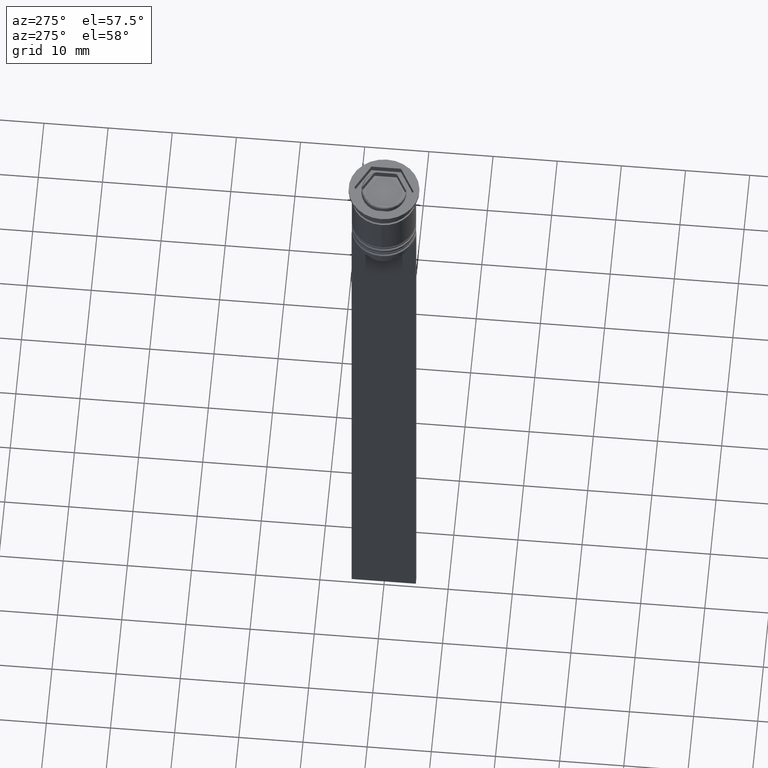
[diagram: clean part render]
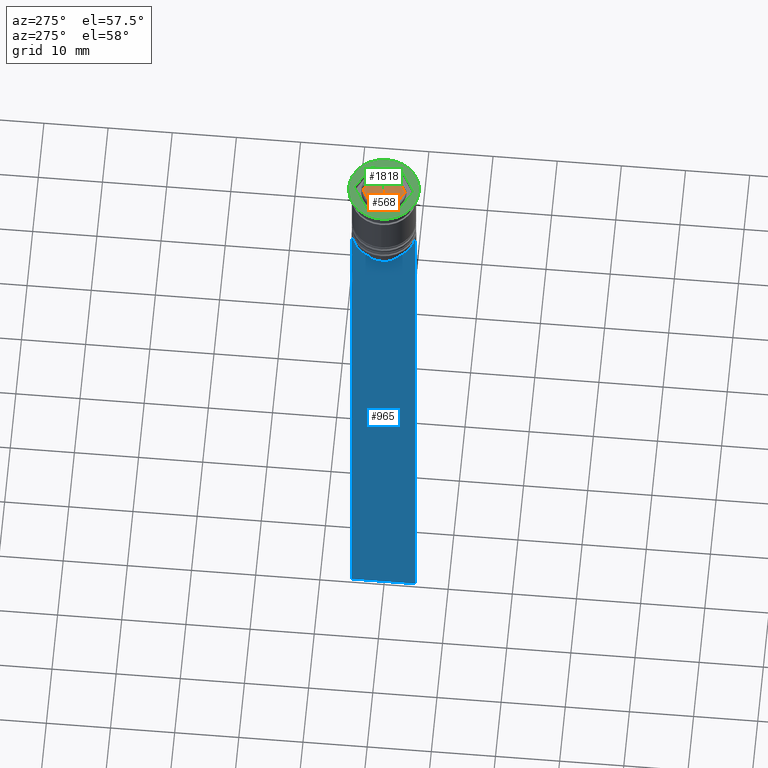
[diagram: same view with three faces highlighted in distinct colors, each labeled with its STEP entity id]
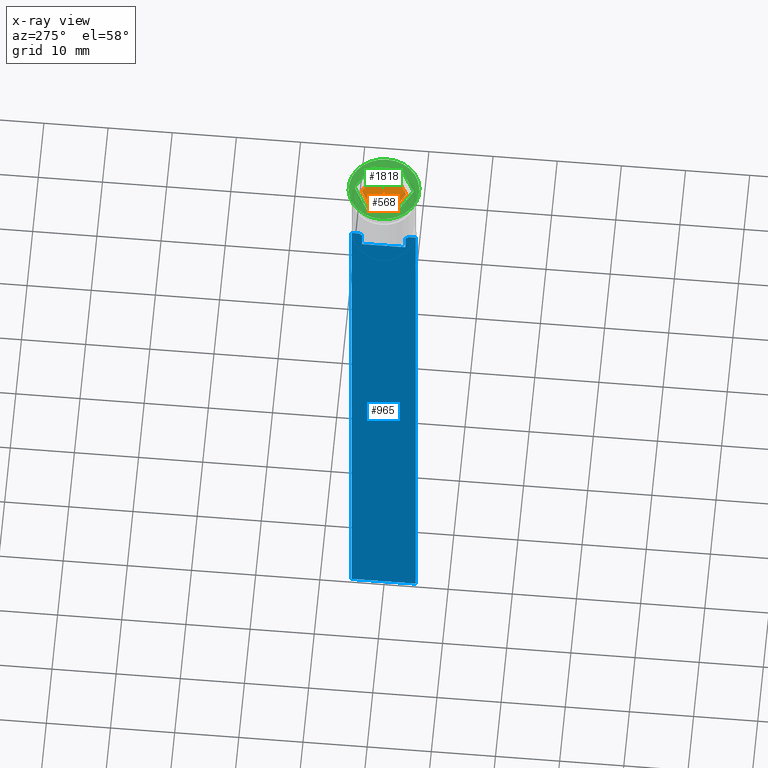
[diagram: x-ray of the same camera — body ghosted, the three highlighted faces saturated]
A machine part, auxiliary view with three faces highlighted in distinct colors.
The next image is the same camera in x-ray (body ghosted, the three faces saturated) — at least one of them is partly hidden behind the body in this view.
Their STEP definitions:

[orange] entity #568 — the highlighted planar face has unit normal (0, 0, 1).
#13 = CARTESIAN_POINT ( 'NONE',  ( 0.000000000000000000, 3.464101615137754386, -1.000000000000000888 ) ) ;
#29 = ORIENTED_EDGE ( 'NONE', *, *, #494, .F. ) ;
#61 = CARTESIAN_POINT ( 'NONE',  ( -3.000000000000000000, -1.732050807568876971, -1.000000000000000888 ) ) ;
#120 = ORIENTED_EDGE ( 'NONE', *, *, #1420, .F. ) ;
#140 = EDGE_LOOP ( 'NONE', ( #1107, #1180, #120, #29, #1145, #2581 ) ) ;
#141 = DIRECTION ( 'NONE',  ( 0.000000000000000000, 0.000000000000000000, 1.000000000000000000 ) ) ;
#155 = VECTOR ( 'NONE', #914, 1000.000000000000114 ) ;
#210 = CARTESIAN_POINT ( 'NONE',  ( 0.000000000000000000, 3.464101615137754386, -1.000000000000000888 ) ) ;
#217 = CARTESIAN_POINT ( 'NONE',  ( 2.999999999999999112, -1.732050807568877193, -1.000000000000000888 ) ) ;
#326 = CARTESIAN_POINT ( 'NONE',  ( -3.000000000000000000, 1.732050807568876971, -1.000000000000000888 ) ) ;
#330 = LINE ( 'NONE', #2507, #899 ) ;
#341 = VERTEX_POINT ( 'NONE', #210 ) ;
#354 = VECTOR ( 'NONE', #1422, 999.9999999999998863 ) ;
#481 = CARTESIAN_POINT ( 'NONE',  ( -2.168404344971008868E-16, -3.464101615137754386, -1.000000000000000888 ) ) ;
#482 = VECTOR ( 'NONE', #780, 999.9999999999998863 ) ;
#484 = VERTEX_POINT ( 'NONE', #678 ) ;
#494 = EDGE_CURVE ( 'NONE', #1505, #855, #1053, .T. ) ;
#568 = ADVANCED_FACE ( 'NONE', ( #1317 ), #900, .T. ) ;
#620 = LINE ( 'NONE', #13, #482 ) ;
#678 = CARTESIAN_POINT ( 'NONE',  ( -3.000000000000000000, 1.732050807568876971, -1.000000000000000888 ) ) ;
#696 = CARTESIAN_POINT ( 'NONE',  ( 3.000000000000000888, 1.732050807568877415, -1.000000000000000888 ) ) ;
#744 = CARTESIAN_POINT ( 'NONE',  ( 0.000000000000000000, 0.000000000000000000, -1.000000000000000000 ) ) ;
#775 = VECTOR ( 'NONE', #2492, 1000.000000000000000 ) ;
#780 = DIRECTION ( 'NONE',  ( 0.8660254037844387076, 0.4999999999999999445, -0.000000000000000000 ) ) ;
#834 = EDGE_CURVE ( 'NONE', #845, #1505, #2434, .T. ) ;
#845 = VERTEX_POINT ( 'NONE', #217 ) ;
#855 = VERTEX_POINT ( 'NONE', #1449 ) ;
#899 = VECTOR ( 'NONE', #2533, 1000.000000000000000 ) ;
#900 = PLANE ( 'NONE',  #2313 ) ;
#914 = DIRECTION ( 'NONE',  ( 0.8660254037844387076, -0.4999999999999997780, 0.000000000000000000 ) ) ;
#970 = CARTESIAN_POINT ( 'NONE',  ( -4.336808689942017736E-16, -3.464101615137753942, -1.000000000000000888 ) ) ;
#1053 = LINE ( 'NONE', #61, #2310 ) ;
#1107 = ORIENTED_EDGE ( 'NONE', *, *, #2501, .F. ) ;
#1145 = ORIENTED_EDGE ( 'NONE', *, *, #834, .F. ) ;
#1180 = ORIENTED_EDGE ( 'NONE', *, *, #1458, .F. ) ;
#1262 = DIRECTION ( 'NONE',  ( -0.8660254037844387076, 0.4999999999999999445, 0.000000000000000000 ) ) ;
#1317 = FACE_OUTER_BOUND ( 'NONE', #140, .T. ) ;
#1337 = DIRECTION ( 'NONE',  ( 1.000000000000000000, 0.000000000000000000, -0.000000000000000000 ) ) ;
#1420 = EDGE_CURVE ( 'NONE', #855, #484, #1536, .T. ) ;
#1422 = DIRECTION ( 'NONE',  ( -0.8660254037844387076, -0.5000000000000001110, 0.000000000000000000 ) ) ;
#1449 = CARTESIAN_POINT ( 'NONE',  ( -3.000000000000000000, -1.732050807568876527, -1.000000000000000888 ) ) ;
#1458 = EDGE_CURVE ( 'NONE', #484, #341, #620, .T. ) ;
#1505 = VERTEX_POINT ( 'NONE', #970 ) ;
#1536 = LINE ( 'NONE', #326, #775 ) ;
#1558 = CARTESIAN_POINT ( 'NONE',  ( 3.000000000000000888, 1.732050807568877193, -1.000000000000000888 ) ) ;
#1918 = EDGE_CURVE ( 'NONE', #2226, #845, #330, .T. ) ;
#2226 = VERTEX_POINT ( 'NONE', #1558 ) ;
#2273 = LINE ( 'NONE', #696, #155 ) ;
#2310 = VECTOR ( 'NONE', #1262, 999.9999999999998863 ) ;
#2313 = AXIS2_PLACEMENT_3D ( 'NONE', #744, #141, #1337 ) ;
#2434 = LINE ( 'NONE', #481, #354 ) ;
#2492 = DIRECTION ( 'NONE',  ( 0.000000000000000000, 1.000000000000000000, 0.000000000000000000 ) ) ;
#2501 = EDGE_CURVE ( 'NONE', #341, #2226, #2273, .T. ) ;
#2507 = CARTESIAN_POINT ( 'NONE',  ( 2.999999999999999112, -1.732050807568877637, -1.000000000000000888 ) ) ;
#2533 = DIRECTION ( 'NONE',  ( -5.007715329123864752E-16, -1.000000000000000000, 0.000000000000000000 ) ) ;
#2581 = ORIENTED_EDGE ( 'NONE', *, *, #1918, .F. ) ;

[blue] entity #965 — the highlighted planar face has unit normal (-1, 0, 0).
#41 = CARTESIAN_POINT ( 'NONE',  ( -0.5000000000000000000, -3.867815921162742754, -12.50000000000000000 ) ) ;
#106 = ORIENTED_EDGE ( 'NONE', *, *, #472, .F. ) ;
#116 = DIRECTION ( 'NONE',  ( 0.000000000000000000, -1.000000000000000000, 0.000000000000000000 ) ) ;
#122 = CARTESIAN_POINT ( 'NONE',  ( -0.5000000000000000000, 5.000000000000000888, -2.450124378879110054 ) ) ;
#203 = DIRECTION ( 'NONE',  ( -1.000000000000000000, 0.000000000000000000, 0.000000000000000000 ) ) ;
#249 = VERTEX_POINT ( 'NONE', #2375 ) ;
#259 = DIRECTION ( 'NONE',  ( 0.000000000000000000, 1.000000000000000000, 0.000000000000000000 ) ) ;
#272 = AXIS2_PLACEMENT_3D ( 'NONE', #1983, #203, #1005 ) ;
#320 = ORIENTED_EDGE ( 'NONE', *, *, #1471, .F. ) ;
#328 = DIRECTION ( 'NONE',  ( 0.000000000000000000, -1.000000000000000000, 0.000000000000000000 ) ) ;
#338 = ORIENTED_EDGE ( 'NONE', *, *, #1892, .F. ) ;
#390 = EDGE_CURVE ( 'NONE', #2467, #2447, #440, .T. ) ;
#408 = DIRECTION ( 'NONE',  ( 0.000000000000000000, -1.000000000000000000, 0.000000000000000000 ) ) ;
#434 = VERTEX_POINT ( 'NONE', #1874 ) ;
#440 = LINE ( 'NONE', #1249, #685 ) ;
#472 = EDGE_CURVE ( 'NONE', #1788, #1924, #2041, .T. ) ;
#492 = CARTESIAN_POINT ( 'NONE',  ( -0.5000000000000000000, -3.867815921162742754, -12.50000000000000000 ) ) ;
#521 = CARTESIAN_POINT ( 'NONE',  ( -0.5000000000000000000, -4.874423042781575788, -12.50000000000000000 ) ) ;
#526 = VECTOR ( 'NONE', #408, 1000.000000000000000 ) ;
#586 = B_SPLINE_CURVE_WITH_KNOTS ( 'NONE', 3,
 ( #1370, #2548, #765, #1563 ),
 .UNSPECIFIED., .F., .F.,
 ( 4, 4 ),
 ( 0.006644825462451552783, 0.007355321358912435097 ),
 .UNSPECIFIED. ) ;
#598 = EDGE_CURVE ( 'NONE', #1322, #1516, #1328, .T. ) ;
#639 = VECTOR ( 'NONE', #328, 1000.000000000000000 ) ;
#685 = VECTOR ( 'NONE', #2255, 1000.000000000000000 ) ;
#720 = CARTESIAN_POINT ( 'NONE',  ( -0.5000000000000000000, 5.000000000000000888, -112.5000000000000000 ) ) ;
#745 = VERTEX_POINT ( 'NONE', #2370 ) ;
#752 = B_SPLINE_CURVE_WITH_KNOTS ( 'NONE', 3,
 ( #1049, #1245, #1824, #41 ),
 .UNSPECIFIED., .F., .F.,
 ( 4, 4 ),
 ( 0.01632394437298965648, 0.01703543518243618576 ),
 .UNSPECIFIED. ) ;
#765 = CARTESIAN_POINT ( 'NONE',  ( -0.5000000000000000000, 3.531412678228260216, -12.83345231756357840 ) ) ;
#776 = VECTOR ( 'NONE', #1090, 1000.000000000000000 ) ;
#815 = CARTESIAN_POINT ( 'NONE',  ( -0.5000000000000000000, -4.999999999999999112, -12.50000000000000000 ) ) ;
#838 = LINE ( 'NONE', #1814, #1894 ) ;
#888 = EDGE_CURVE ( 'NONE', #434, #2048, #752, .T. ) ;
#905 = EDGE_CURVE ( 'NONE', #2048, #1322, #838, .T. ) ;
#916 = ORIENTED_EDGE ( 'NONE', *, *, #1743, .F. ) ;
#965 = ADVANCED_FACE ( 'NONE', ( #2426 ), #1600, .T. ) ;
#1005 = DIRECTION ( 'NONE',  ( 0.000000000000000000, 0.000000000000000000, 1.000000000000000000 ) ) ;
#1040 = CARTESIAN_POINT ( 'NONE',  ( -0.5000000000000000000, -4.999999999999999112, -112.5000000000000000 ) ) ;
#1049 = CARTESIAN_POINT ( 'NONE',  ( -0.5000000000000000000, -3.363034344160045208, -13.00000000000000178 ) ) ;
#1063 = VERTEX_POINT ( 'NONE', #1375 ) ;
#1090 = DIRECTION ( 'NONE',  ( 0.000000000000000000, 0.000000000000000000, -1.000000000000000000 ) ) ;
#1103 = CARTESIAN_POINT ( 'NONE',  ( -0.5000000000000000000, 3.399999999999998135, -15.50000000000000000 ) ) ;
#1110 = CARTESIAN_POINT ( 'NONE',  ( -0.5000000000000000000, 3.363034344160045652, -15.50000000000000000 ) ) ;
#1118 = CARTESIAN_POINT ( 'NONE',  ( -0.5000000000000000000, -4.999999999999999112, -2.450124378879110054 ) ) ;
#1163 = DIRECTION ( 'NONE',  ( -0.000000000000000000, -0.000000000000000000, 1.000000000000000000 ) ) ;
#1245 = CARTESIAN_POINT ( 'NONE',  ( -0.5000000000000000000, -3.531412985305424801, -12.83345201382502765 ) ) ;
#1249 = CARTESIAN_POINT ( 'NONE',  ( -0.5000000000000000000, 3.363034344160045208, 0.000000000000000000 ) ) ;
#1322 = VERTEX_POINT ( 'NONE', #521 ) ;
#1328 = LINE ( 'NONE', #2297, #639 ) ;
#1370 = CARTESIAN_POINT ( 'NONE',  ( -0.5000000000000000000, 3.867815921162742754, -12.50000000000000000 ) ) ;
#1375 = CARTESIAN_POINT ( 'NONE',  ( -0.5000000000000000000, 3.867815921162742754, -12.50000000000000000 ) ) ;
#1398 = LINE ( 'NONE', #2197, #526 ) ;
#1435 = VERTEX_POINT ( 'NONE', #1494 ) ;
#1471 = EDGE_CURVE ( 'NONE', #745, #1063, #2368, .T. ) ;
#1473 = EDGE_CURVE ( 'NONE', #1063, #2467, #586, .T. ) ;
#1494 = CARTESIAN_POINT ( 'NONE',  ( -0.5000000000000000000, 5.000000000000000888, -12.50000000000000000 ) ) ;
#1496 = ORIENTED_EDGE ( 'NONE', *, *, #1757, .F. ) ;
#1516 = VERTEX_POINT ( 'NONE', #815 ) ;
#1551 = ORIENTED_EDGE ( 'NONE', *, *, #1473, .F. ) ;
#1561 = EDGE_CURVE ( 'NONE', #1435, #745, #1398, .T. ) ;
#1563 = CARTESIAN_POINT ( 'NONE',  ( -0.5000000000000000000, 3.363034344160045208, -13.00000000000000178 ) ) ;
#1573 = DIRECTION ( 'NONE',  ( 0.000000000000000000, -1.000000000000000000, 0.000000000000000000 ) ) ;
#1600 = PLANE ( 'NONE',  #272 ) ;
#1743 = EDGE_CURVE ( 'NONE', #2447, #249, #2292, .T. ) ;
#1757 = EDGE_CURVE ( 'NONE', #1516, #1788, #2538, .T. ) ;
#1786 = ORIENTED_EDGE ( 'NONE', *, *, #888, .F. ) ;
#1788 = VERTEX_POINT ( 'NONE', #2524 ) ;
#1814 = CARTESIAN_POINT ( 'NONE',  ( -0.5000000000000000000, -4.999999999999999112, -12.50000000000000000 ) ) ;
#1824 = CARTESIAN_POINT ( 'NONE',  ( -0.5000000000000000000, -3.699658232838647365, -12.66676999593996555 ) ) ;
#1836 = EDGE_LOOP ( 'NONE', ( #1551, #320, #2474, #1935, #106, #1496, #2306, #2239, #1786, #338, #916, #1955 ) ) ;
#1838 = DIRECTION ( 'NONE',  ( 0.000000000000000000, -1.000000000000000000, 0.000000000000000000 ) ) ;
#1871 = EDGE_CURVE ( 'NONE', #1435, #1924, #1913, .T. ) ;
#1874 = CARTESIAN_POINT ( 'NONE',  ( -0.5000000000000000000, -3.363034344160045208, -13.00000000000000178 ) ) ;
#1892 = EDGE_CURVE ( 'NONE', #249, #434, #2311, .T. ) ;
#1894 = VECTOR ( 'NONE', #1838, 1000.000000000000000 ) ;
#1904 = CARTESIAN_POINT ( 'NONE',  ( -0.5000000000000000000, -3.363034344160045208, 0.000000000000000000 ) ) ;
#1913 = LINE ( 'NONE', #122, #2107 ) ;
#1924 = VERTEX_POINT ( 'NONE', #720 ) ;
#1932 = VECTOR ( 'NONE', #1163, 1000.000000000000000 ) ;
#1935 = ORIENTED_EDGE ( 'NONE', *, *, #1871, .T. ) ;
#1955 = ORIENTED_EDGE ( 'NONE', *, *, #390, .F. ) ;
#1983 = CARTESIAN_POINT ( 'NONE',  ( -0.5000000000000000000, -4.999999999999999112, -2.450124378879110054 ) ) ;
#2004 = VECTOR ( 'NONE', #259, 1000.000000000000000 ) ;
#2041 = LINE ( 'NONE', #1040, #2004 ) ;
#2048 = VERTEX_POINT ( 'NONE', #492 ) ;
#2060 = VECTOR ( 'NONE', #1573, 1000.000000000000000 ) ;
#2099 = CARTESIAN_POINT ( 'NONE',  ( -0.5000000000000000000, 3.363034344160045208, -13.00000000000000178 ) ) ;
#2107 = VECTOR ( 'NONE', #2113, 1000.000000000000000 ) ;
#2113 = DIRECTION ( 'NONE',  ( 0.000000000000000000, 0.000000000000000000, -1.000000000000000000 ) ) ;
#2197 = CARTESIAN_POINT ( 'NONE',  ( -0.5000000000000000000, -4.999999999999999112, -12.50000000000000000 ) ) ;
#2206 = CARTESIAN_POINT ( 'NONE',  ( -0.5000000000000000000, -4.999999999999999112, -12.50000000000000000 ) ) ;
#2239 = ORIENTED_EDGE ( 'NONE', *, *, #905, .F. ) ;
#2255 = DIRECTION ( 'NONE',  ( 0.000000000000000000, 0.000000000000000000, -1.000000000000000000 ) ) ;
#2292 = LINE ( 'NONE', #1103, #2562 ) ;
#2297 = CARTESIAN_POINT ( 'NONE',  ( -0.5000000000000000000, -4.999999999999999112, -12.50000000000000000 ) ) ;
#2306 = ORIENTED_EDGE ( 'NONE', *, *, #598, .F. ) ;
#2311 = LINE ( 'NONE', #1904, #1932 ) ;
#2368 = LINE ( 'NONE', #2206, #2060 ) ;
#2370 = CARTESIAN_POINT ( 'NONE',  ( -0.5000000000000000000, 4.874423042781575788, -12.50000000000000000 ) ) ;
#2375 = CARTESIAN_POINT ( 'NONE',  ( -0.5000000000000000000, -3.363034344160045652, -15.50000000000000000 ) ) ;
#2426 = FACE_OUTER_BOUND ( 'NONE', #1836, .T. ) ;
#2447 = VERTEX_POINT ( 'NONE', #1110 ) ;
#2467 = VERTEX_POINT ( 'NONE', #2099 ) ;
#2474 = ORIENTED_EDGE ( 'NONE', *, *, #1561, .F. ) ;
#2524 = CARTESIAN_POINT ( 'NONE',  ( -0.5000000000000000000, -4.999999999999999112, -112.5000000000000000 ) ) ;
#2538 = LINE ( 'NONE', #1118, #776 ) ;
#2548 = CARTESIAN_POINT ( 'NONE',  ( -0.5000000000000000000, 3.699657965831574913, -12.66677026074361301 ) ) ;
#2562 = VECTOR ( 'NONE', #116, 1000.000000000000000 ) ;

[green] entity #1818 — the highlighted planar face has unit normal (0, -0, 1).
#28 = CARTESIAN_POINT ( 'NONE',  ( 4.000000000000000000, -2.309401076758503368, 0.000000000000000000 ) ) ;
#40 = ORIENTED_EDGE ( 'NONE', *, *, #334, .F. ) ;
#43 = CARTESIAN_POINT ( 'NONE',  ( 0.000000000000000000, 4.618802153517005848, 0.000000000000000000 ) ) ;
#47 = EDGE_LOOP ( 'NONE', ( #40, #1883, #646, #205, #926, #2252 ) ) ;
#50 = DIRECTION ( 'NONE',  ( 0.000000000000000000, 1.000000000000000000, 0.000000000000000000 ) ) ;
#89 = DIRECTION ( 'NONE',  ( 0.8660254037844384856, 0.5000000000000001110, 0.000000000000000000 ) ) ;
#99 = LINE ( 'NONE', #1490, #1219 ) ;
#102 = VECTOR ( 'NONE', #797, 1000.000000000000000 ) ;
#127 = FACE_OUTER_BOUND ( 'NONE', #144, .T. ) ;
#129 = VERTEX_POINT ( 'NONE', #495 ) ;
#144 = EDGE_LOOP ( 'NONE', ( #1035, #609 ) ) ;
#151 = FACE_BOUND ( 'NONE', #47, .T. ) ;
#167 = VERTEX_POINT ( 'NONE', #2082 ) ;
#187 = EDGE_CURVE ( 'NONE', #952, #781, #99, .T. ) ;
#200 = VERTEX_POINT ( 'NONE', #2400 ) ;
#205 = ORIENTED_EDGE ( 'NONE', *, *, #804, .F. ) ;
#279 = CIRCLE ( 'NONE', #2187, 5.500000000000000000 ) ;
#334 = EDGE_CURVE ( 'NONE', #1000, #167, #2173, .T. ) ;
#336 = CARTESIAN_POINT ( 'NONE',  ( 0.000000000000000000, 0.000000000000000000, 0.000000000000000000 ) ) ;
#372 = CARTESIAN_POINT ( 'NONE',  ( 0.000000000000000000, 0.000000000000000000, 0.000000000000000000 ) ) ;
#437 = DIRECTION ( 'NONE',  ( -0.8660254037844385966, -0.5000000000000000000, 0.000000000000000000 ) ) ;
#464 = LINE ( 'NONE', #1258, #2521 ) ;
#495 = CARTESIAN_POINT ( 'NONE',  ( -5.500000000000000000, 6.735557395310442023E-16, 0.000000000000000000 ) ) ;
#605 = VECTOR ( 'NONE', #50, 1000.000000000000000 ) ;
#609 = ORIENTED_EDGE ( 'NONE', *, *, #726, .T. ) ;
#632 = CARTESIAN_POINT ( 'NONE',  ( -4.000000000000000000, -2.309401076758503368, 0.000000000000000000 ) ) ;
#646 = ORIENTED_EDGE ( 'NONE', *, *, #919, .F. ) ;
#724 = DIRECTION ( 'NONE',  ( 1.000000000000000000, 0.000000000000000000, 0.000000000000000000 ) ) ;
#726 = EDGE_CURVE ( 'NONE', #129, #1733, #1845, .T. ) ;
#781 = VERTEX_POINT ( 'NONE', #632 ) ;
#797 = DIRECTION ( 'NONE',  ( -0.8660254037844387076, 0.4999999999999998890, 0.000000000000000000 ) ) ;
#804 = EDGE_CURVE ( 'NONE', #781, #200, #1659, .T. ) ;
#847 = VECTOR ( 'NONE', #1857, 1000.000000000000000 ) ;
#918 = CARTESIAN_POINT ( 'NONE',  ( 5.500000000000000000, 0.000000000000000000, 0.000000000000000000 ) ) ;
#919 = EDGE_CURVE ( 'NONE', #200, #1885, #464, .T. ) ;
#926 = ORIENTED_EDGE ( 'NONE', *, *, #187, .F. ) ;
#945 = PLANE ( 'NONE',  #1808 ) ;
#952 = VERTEX_POINT ( 'NONE', #2214 ) ;
#957 = DIRECTION ( 'NONE',  ( 0.000000000000000000, -0.000000000000000000, 1.000000000000000000 ) ) ;
#973 = DIRECTION ( 'NONE',  ( 1.000000000000000000, 0.000000000000000000, 0.000000000000000000 ) ) ;
#1000 = VERTEX_POINT ( 'NONE', #1406 ) ;
#1035 = ORIENTED_EDGE ( 'NONE', *, *, #1746, .T. ) ;
#1188 = EDGE_CURVE ( 'NONE', #167, #952, #1672, .T. ) ;
#1219 = VECTOR ( 'NONE', #1255, 1000.000000000000000 ) ;
#1255 = DIRECTION ( 'NONE',  ( 0.000000000000000000, -1.000000000000000000, 0.000000000000000000 ) ) ;
#1258 = CARTESIAN_POINT ( 'NONE',  ( 8.729740977282959667E-16, -4.618802153517006737, 0.000000000000000000 ) ) ;
#1406 = CARTESIAN_POINT ( 'NONE',  ( 4.000000000000000000, 2.309401076758503368, 0.000000000000000000 ) ) ;
#1490 = CARTESIAN_POINT ( 'NONE',  ( -4.000000000000000000, 2.309401076758502480, 0.000000000000000000 ) ) ;
#1520 = CARTESIAN_POINT ( 'NONE',  ( 4.000000000000000000, -2.309401076758503368, 0.000000000000000000 ) ) ;
#1596 = EDGE_CURVE ( 'NONE', #1885, #1000, #2236, .T. ) ;
#1634 = VECTOR ( 'NONE', #437, 1000.000000000000227 ) ;
#1659 = LINE ( 'NONE', #2408, #847 ) ;
#1672 = LINE ( 'NONE', #43, #1634 ) ;
#1733 = VERTEX_POINT ( 'NONE', #918 ) ;
#1746 = EDGE_CURVE ( 'NONE', #1733, #129, #279, .T. ) ;
#1798 = AXIS2_PLACEMENT_3D ( 'NONE', #372, #2379, #973 ) ;
#1808 = AXIS2_PLACEMENT_3D ( 'NONE', #1946, #957, #2140 ) ;
#1818 = ADVANCED_FACE ( 'NONE', ( #151, #127 ), #945, .T. ) ;
#1845 = CIRCLE ( 'NONE', #1798, 5.500000000000000000 ) ;
#1857 = DIRECTION ( 'NONE',  ( 0.8660254037844387076, -0.4999999999999999445, 0.000000000000000000 ) ) ;
#1883 = ORIENTED_EDGE ( 'NONE', *, *, #1596, .F. ) ;
#1885 = VERTEX_POINT ( 'NONE', #1520 ) ;
#1946 = CARTESIAN_POINT ( 'NONE',  ( 0.000000000000000000, 0.000000000000000000, 0.000000000000000000 ) ) ;
#2082 = CARTESIAN_POINT ( 'NONE',  ( 0.000000000000000000, 4.618802153517005848, 0.000000000000000000 ) ) ;
#2140 = DIRECTION ( 'NONE',  ( 1.000000000000000000, 0.000000000000000000, 0.000000000000000000 ) ) ;
#2173 = LINE ( 'NONE', #2582, #102 ) ;
#2187 = AXIS2_PLACEMENT_3D ( 'NONE', #336, #2500, #724 ) ;
#2214 = CARTESIAN_POINT ( 'NONE',  ( -4.000000000000000000, 2.309401076758502480, 0.000000000000000000 ) ) ;
#2236 = LINE ( 'NONE', #28, #605 ) ;
#2252 = ORIENTED_EDGE ( 'NONE', *, *, #1188, .F. ) ;
#2379 = DIRECTION ( 'NONE',  ( -0.000000000000000000, -0.000000000000000000, 1.000000000000000000 ) ) ;
#2400 = CARTESIAN_POINT ( 'NONE',  ( 8.729740977282959667E-16, -4.618802153517006737, 0.000000000000000000 ) ) ;
#2408 = CARTESIAN_POINT ( 'NONE',  ( -4.000000000000000000, -2.309401076758503368, 0.000000000000000000 ) ) ;
#2500 = DIRECTION ( 'NONE',  ( -0.000000000000000000, -0.000000000000000000, 1.000000000000000000 ) ) ;
#2521 = VECTOR ( 'NONE', #89, 1000.000000000000227 ) ;
#2582 = CARTESIAN_POINT ( 'NONE',  ( 4.000000000000000000, 2.309401076758503368, 0.000000000000000000 ) ) ;